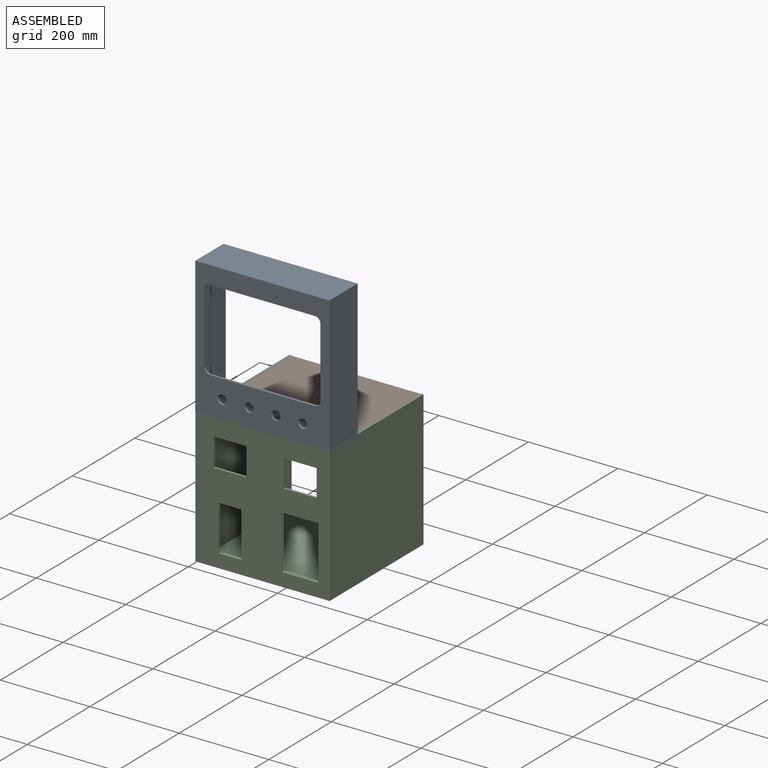
[diagram: assembled view]
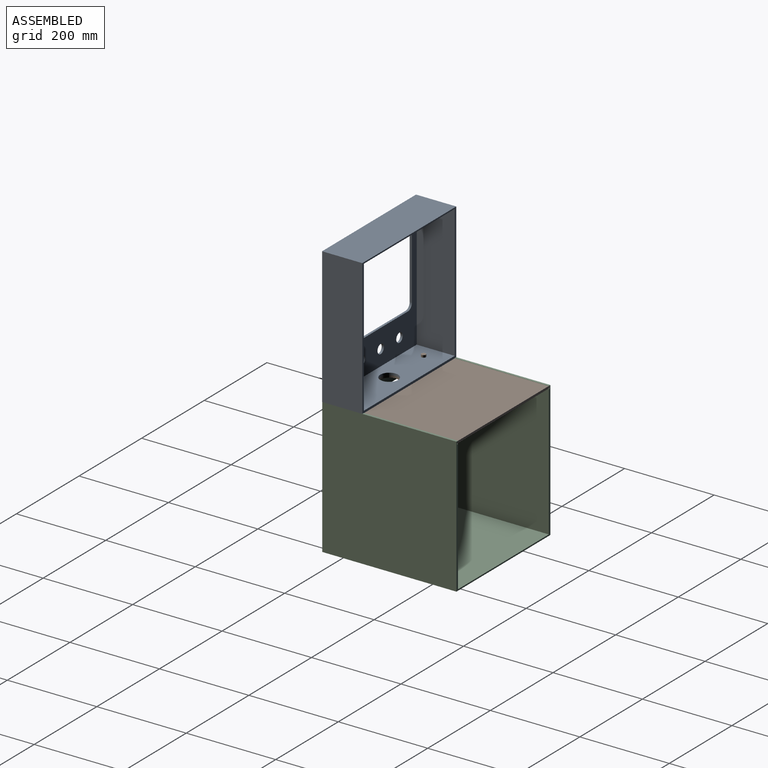
[diagram: assembled view, second angle]
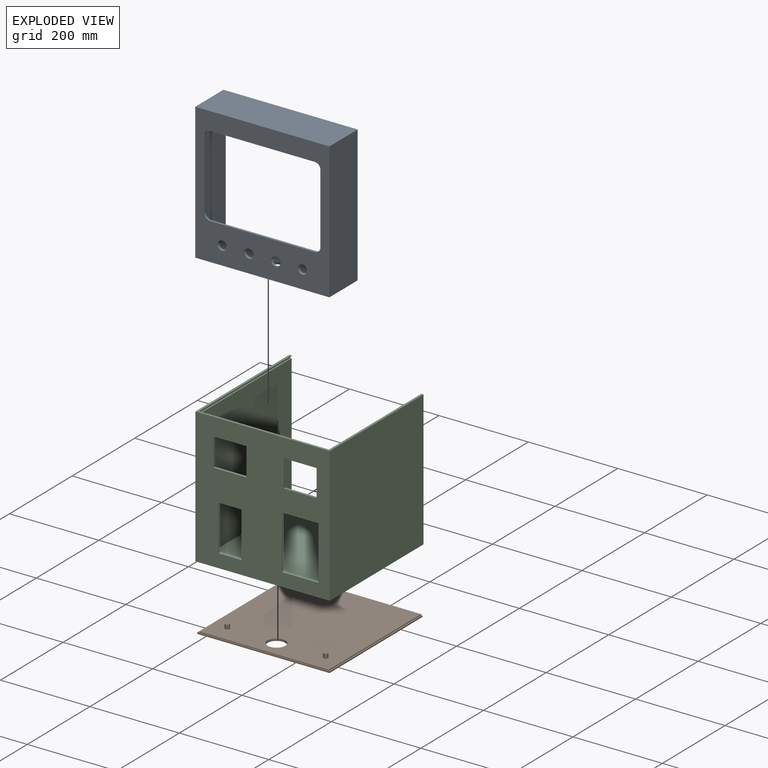
[diagram: exploded view]
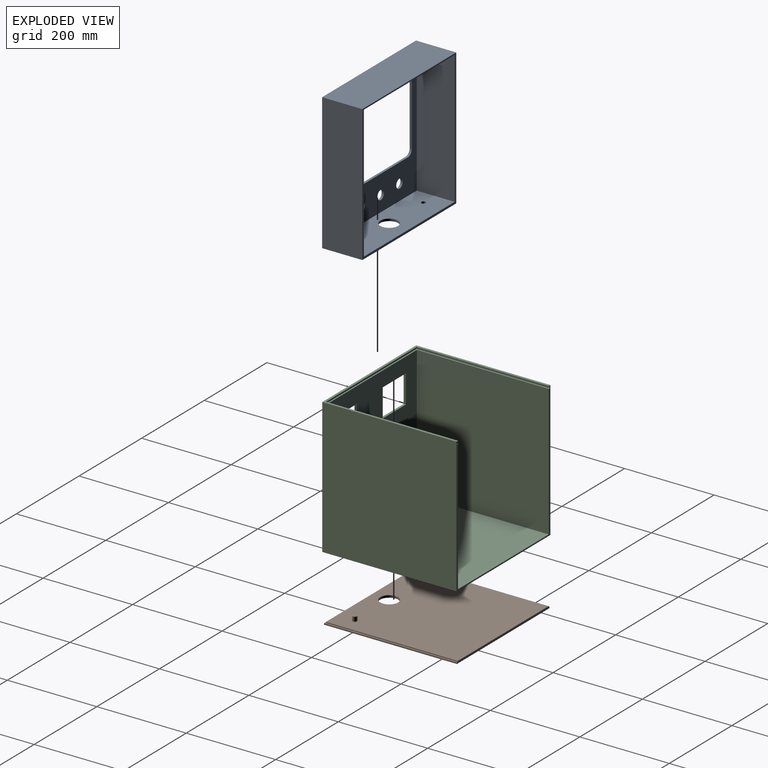
[diagram: exploded view, second angle]
ASSEMBLY  parts=3 mates=2
PART A: 26 faces, bbox 300x90x305 mm
  f0: plane 297x290mm, normal (0,1,0), area 37682.3mm2, adj f1,f2,f4,f10,f11,f12,f13,f14
  f1: plane 297x85mm, normal (1,0,0), area 25245mm2, adj f0,f4,f7,f10
  f2: plane 297x85mm, normal (-1,0,0), area 25245mm2, adj f0,f4,f7,f10
  f3: plane 305x300mm, normal (0,-1,0), area 43052.3mm2, adj f5,f6,f8,f9,f11,f12,f13,f14
  f4: plane 290x85mm, normal (0,0,1), area 23236.3mm2, adj f0,f1,f2,f7,f23,f24,f25
  f5: plane 305x90mm, normal (-1,0,0), area 27450mm2, adj f3,f7,f8,f9
  f6: plane 305x90mm, normal (1,0,0), area 27450mm2, adj f3,f7,f8,f9
  f7: plane 305x300mm, normal (0,1,0), area 5370mm2, adj f1,f2,f4,f5,f6,f8,f9,f10
  f8: plane 300x90mm, normal (0,0,-1), area 25586.3mm2, adj f3,f5,f6,f7,f23,f24,f25
  f9: plane 300x90mm, normal (0,0,1), area 27000mm2, adj f3,f5,f6,f7
  f10: plane 290x85mm, normal (0,0,-1), area 24650mm2, adj f0,f1,f2,f7
  f11: plane 233.9x5mm, normal (0,0,-1), area 1169.5mm2, adj f0,f3,f15,f17
  f12: plane 156.6x5mm, normal (1,0,0), area 783mm2, adj f0,f3,f15,f16
  f13: plane 233.9x5mm, normal (0,0,1), area 1169.5mm2, adj f0,f3,f16,f18
  f14: plane 156.6x5mm, normal (-1,0,0), area 783mm2, adj f0,f3,f17,f18
  f15: cylinder r=12.8mm len=12.8mm, axis (0,-1,0), area 100.5mm2, adj f0,f3,f11,f12
  f16: cylinder r=12.8mm len=12.8mm, axis (0,1,0), area 100.5mm2, adj f0,f3,f12,f13
  f17: cylinder r=12.8mm len=12.8mm, axis (0,1,0), area 100.5mm2, adj f0,f3,f11,f14
  f18: cylinder r=12.8mm len=12.8mm, axis (0,-1,0), area 100.5mm2, adj f0,f3,f13,f14
  f19: cylinder r=10.2mm len=20.4mm, axis (0,-1,0), area 320.4mm2, adj f0,f3
  f20: cylinder r=10.2mm len=20.4mm, axis (0,-1,0), area 320.4mm2, adj f0,f3
  f21: cylinder r=10.2mm len=20.4mm, axis (0,-1,0), area 320.4mm2, adj f0,f3
  f22: cylinder r=10.2mm len=20.4mm, axis (0,-1,0), area 320.4mm2, adj f0,f3
  f23: cylinder r=20mm len=40mm, axis (0,0,1), area 628.3mm2, adj f4,f8
  f24: cylinder r=5mm len=10mm, axis (0,0,1), area 157.1mm2, adj f4,f8
  f25: cylinder r=5mm len=10mm, axis (0,0,1), area 157.1mm2, adj f4,f8
PART B: 17 faces, bbox 296x297x15 mm
  f0: plane 295x3mm, normal (0,0,1), area 885mm2, adj f2,f3,f8,f11
  f1: plane 295x2mm, normal (-1,0,0), area 590mm2, adj f2,f4,f5,f9
  f2: plane 296x5mm, normal (0,-1,0), area 1467.4mm2, adj f0,f1,f3,f5,f6,f8,f9,f10
  f3: plane 295x2.2mm, normal (1,0,0), area 649mm2, adj f0,f2,f4,f5,f11
  f4: plane 290x2mm, normal (0,1,0), area 580mm2, adj f1,f3,f5,f9
  f5: plane 295x290mm, normal (0,0,1), area 84136.3mm2, adj f1,f2,f3,f4,f12,f14,f16
  f6: plane 297x296mm, normal (0,0,-1), area 86655.4mm2, adj f2,f7,f8,f10,f16
  f7: plane 296x3mm, normal (0,1,0), area 888mm2, adj f6,f8,f9,f10
  f8: plane 297x3mm, normal (1,0,0), area 832mm2, adj f0,f2,f6,f7,f9,f11
  f9: plane 297x296mm, normal (0,0,1), area 1477mm2, adj f1,f2,f4,f7,f8,f10,f11
  f10: plane 297x3mm, normal (-1,0,0), area 891mm2, adj f2,f6,f7,f9
  f11: plane 3x0.2mm, normal (0,-1,0), area 0.6mm2, adj f0,f3,f8,f9
  f12: cylinder r=5mm len=10mm, axis (0,0,-1), area 314.2mm2, adj f5,f13
  f13: plane 10x10mm, normal (0,0,1), area 78.5mm2, adj f12
  f14: cylinder r=5mm len=10mm, axis (0,0,-1), area 314.2mm2, adj f5,f15
  f15: plane 10x10mm, normal (0,0,1), area 78.5mm2, adj f14
  f16: cylinder r=20mm len=40mm, axis (0,0,1), area 628.3mm2, adj f5,f6
PART C: 34 faces, bbox 300x300x303 mm
  f0: plane 290x2mm, normal (0,1,0), area 580mm2, adj f1,f6,f12,f30
  f1: plane 295x2mm, normal (1,0,0), area 590mm2, adj f0,f2,f6,f30
  f2: plane 303x300mm, normal (0,1,0), area 3876mm2, adj f1,f3,f6,f7,f8,f9,f10,f11
  f3: plane 295x294mm, normal (-1,0,0), area 86730mm2, adj f2,f4,f7,f29
  f4: plane 294x290mm, normal (0,1,0), area 60940mm2, adj f3,f7,f11,f13,f14,f15,f16,f17
  f5: plane 303x300mm, normal (0,-1,0), area 66580mm2, adj f6,f8,f9,f10,f13,f14,f15,f16
  f6: plane 300x300mm, normal (0,0,1), area 4450mm2, adj f0,f1,f2,f5,f8,f9,f12
  f7: plane 295x290mm, normal (0,0,1), area 85550mm2, adj f2,f3,f4,f11
  f8: plane 303x300mm, normal (-1,0,0), area 90900mm2, adj f2,f5,f6,f10
  f9: plane 303x300mm, normal (1,0,0), area 90900mm2, adj f2,f5,f6,f10
  f10: plane 300x300mm, normal (0,0,-1), area 90000mm2, adj f2,f5,f8,f9
  f11: plane 295x294mm, normal (1,0,0), area 86730mm2, adj f2,f4,f7,f29
  f12: plane 295x2mm, normal (-1,0,0), area 590mm2, adj f0,f2,f6,f30
  f13: plane 63x5mm, normal (1,0,0), area 315mm2, adj f4,f5,f14,f16
  f14: plane 74x5mm, normal (0,0,1), area 370mm2, adj f4,f5,f13,f15
  f15: plane 63x5mm, normal (-1,0,0), area 315mm2, adj f4,f5,f14,f16
  f16: plane 74x5mm, normal (0,0,-1), area 370mm2, adj f4,f5,f13,f15
  f17: plane 82x5mm, normal (0,0,-1), area 410mm2, adj f4,f5,f18,f20
  f18: plane 120x5mm, normal (1,0,0), area 600mm2, adj f4,f5,f17,f19
  f19: plane 82x5mm, normal (0,0,1), area 410mm2, adj f4,f5,f18,f20
  f20: plane 120x5mm, normal (-1,0,0), area 600mm2, adj f4,f5,f17,f19
  f21: plane 61x5mm, normal (1,0,0), area 305mm2, adj f4,f5,f22,f24
  f22: plane 74x5mm, normal (0,0,1), area 370mm2, adj f4,f5,f21,f23
  f23: plane 61x5mm, normal (-1,0,0), area 305mm2, adj f4,f5,f22,f24
  f24: plane 74x5mm, normal (0,0,-1), area 370mm2, adj f4,f5,f21,f23
  f25: plane 52x5mm, normal (0,0,-1), area 260mm2, adj f4,f5,f26,f28
  f26: plane 102x5mm, normal (1,0,0), area 510mm2, adj f4,f5,f25,f27
  f27: plane 52x5mm, normal (0,0,1), area 260mm2, adj f4,f5,f26,f28
  f28: plane 102x5mm, normal (-1,0,0), area 510mm2, adj f4,f5,f25,f27
  f29: plane 298x296mm, normal (0,0,1), area 2658mm2, adj f2,f3,f4,f11,f31,f32,f33
  f30: plane 298x296mm, normal (0,0,-1), area 2658mm2, adj f0,f1,f2,f12,f31,f32,f33
  f31: plane 298x4mm, normal (-1,0,0), area 1192mm2, adj f2,f29,f30,f33
  f32: plane 298x4mm, normal (1,0,0), area 1192mm2, adj f2,f29,f30,f33
  f33: plane 296x4mm, normal (0,1,0), area 1184mm2, adj f29,f30,f31,f32
PLACE A t=(-8.04,-51.89,303.23)mm
PLACE B rot(axis=(0,0,-1),180deg) t=(286.96,248.11,298.23)mm
PLACE C t=(-8.04,-51.46,0.63)mm
MATE slider A.f24 <-> B.f12  axis (0,0,1) through (31.96,-6.89,308.23)mm
MATE slider B.f8 <-> C.f32  axis (-1,0,0) through (-6.04,99.54,299.63)mm
